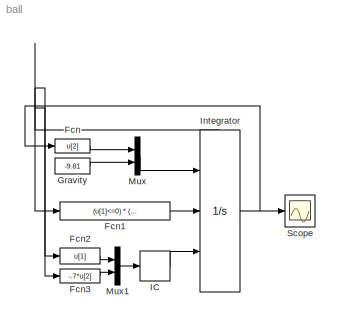
MODEL ball
KIND model
BLOCK [Fcn] Fcn
  Expr = u[2]
  SID = 1
BLOCK [Fcn] Fcn1
  Expr = (u[1]<=0) * (u[2]< 0)
  SID = 2
BLOCK [Fcn] Fcn2
  Expr = u[1]
  SID = 3
BLOCK [Fcn] Fcn3
  Expr = -.7*u[2]
  SID = 4
BLOCK [Constant] Gravity
  SID = 5
  Value = -9.81
BLOCK [InitialCondition] IC
  SID = 6
  Value = [10;5]
BLOCK [Integrator] Integrator
  ExternalReset = rising
  InitialConditionSource = external
  LimitOutput = on
  LowerSaturationLimit = [0;-inf]
  Ports = [3, 1, 0, 0, 1]
  SID = 7
  ShowStatePort = on
BLOCK [Mux] Mux
  DisplayOption = bar
  Inputs = 2
  Ports = [2, 1]
  SID = 8
BLOCK [Mux] Mux1
  DisplayOption = bar
  Inputs = 2
  Ports = [2, 1]
  SID = 9
BLOCK [Scope] Scope
  NumInputPorts = 1
  Ports = [1]
  SID = 10
  ScopeSpecificationString = Simulink.scopes.TimeScopeBlockCfg('CurrentConfiguration', extmgr.ConfigurationSet(extmgr.Configuration('Core','General UI',true),extmgr.Configuration('Core','Source UI',true),extmgr.Configuration('Sources','WiredSimulink',true,'DataLoggingSaveFormat','StructureWithTime','DataLoggingLimitDataPoints',true,'DataLoggingDecimation','1','DataLoggingDecimateData',true),extmgr.Configuration('Visuals','Tim...<+1682ch>
LINE Fcn1:1 -> Integrator:2
LINE Fcn2:1 -> Mux1:1
LINE Fcn3:1 -> Mux1:2
LINE Fcn:1 -> Mux:1
LINE Gravity:1 -> Mux:2
LINE IC:1 -> Integrator:3
NET Integrator:1 -> Fcn:1, Scope:1
NET Integrator:state -> Fcn1:1, Fcn2:1, Fcn3:1
LINE Mux1:1 -> IC:1
LINE Mux:1 -> Integrator:1
note: NET lines group one-source signal fan-out (src -> all destinations, sorted); 1:1 wires keep LINE
